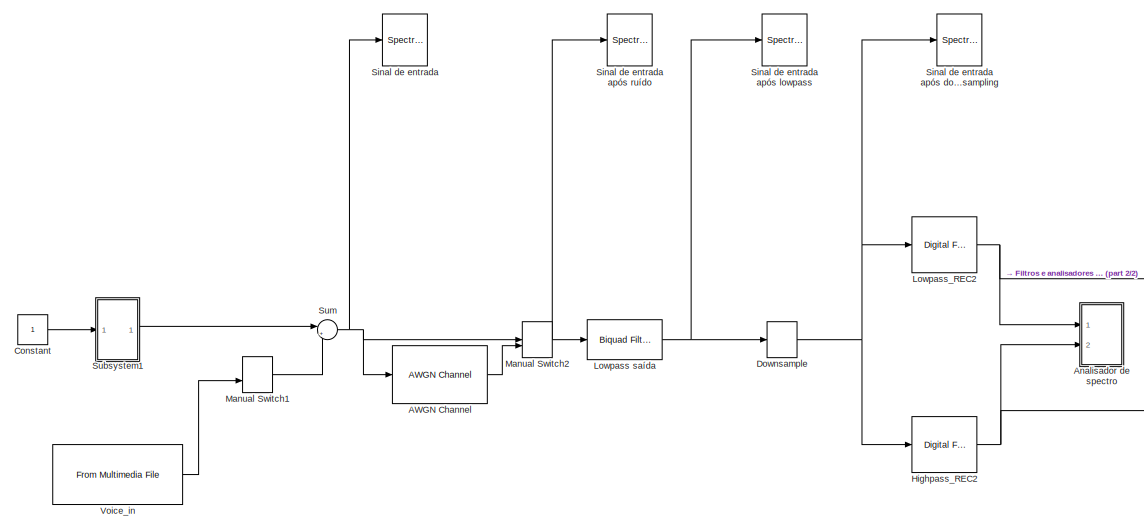
[diagram: root canvas - part 1/2, left side, full height]
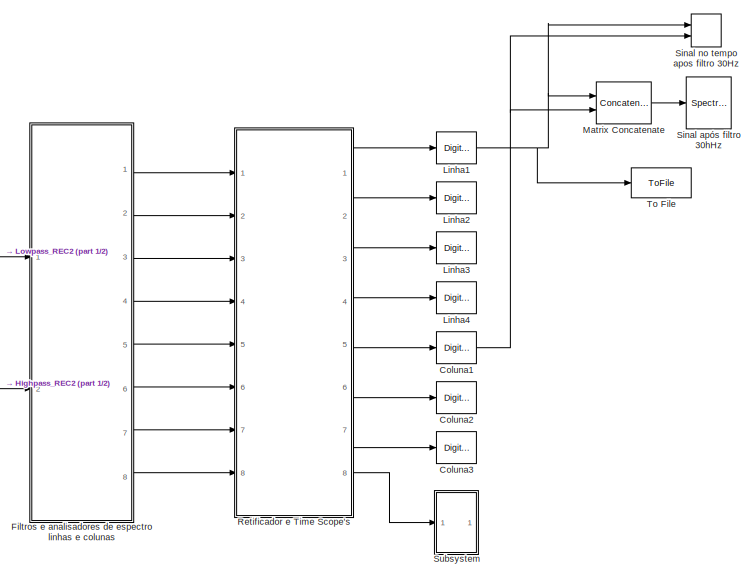
[diagram: root canvas - part 2/2, right side, full height]
MODEL slx_a0249efa5e4d
KIND model
CONFIG AbsTol = auto
CONFIG FixedStep = auto
CONFIG MaxStep = auto
CONFIG MinStep = auto
CONFIG RelTol = 1e-3
CONFIG SampleTimeConstraint = Unconstrained
CONFIG Solver = ode45
CONFIG SolverMode = Auto
CONFIG SolverName = ode45
CONFIG StartTime = 0.0
CONFIG StopTime = 10
BLOCK [Reference] AWGN Channel  REF=commchan3/AWGN
Channel
  EbNodB = 30
  EsNodB = 10
  InputProcessing = Columns as channels (frame based)
  Ports = [1, 1]
  Ps = 1
  SNRdB = 5
  SourceBlock = commchan3/AWGN\nChannel
  SourceType = AWGN Channel
  Tsym = 1
  UserDataPersistent = on
  bitsPerSym = 1
  noiseMode = Signal to noise ratio  (SNR)
  seed = 67
  variance = 1
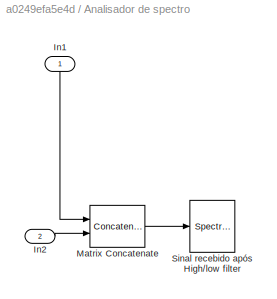
BLOCK [SubSystem] Analisador de spectro
  Ports = [2]
  RequestExecContextInheritance = off
BLOCK [Inport] Analisador de spectro/In1
  IconDisplay = Port number
BLOCK [Inport] Analisador de spectro/In2
  IconDisplay = Port number
  Port = 2
BLOCK [Concatenate] Analisador de spectro/Matrix Concatenate
  ConcatenateDimension = 2
  Mode = Multidimensional array
  Ports = [2, 1]
BLOCK [SpectrumAnalyzer] Analisador de spectro/Sinal recebido após High//low filter
  Ports = [1]
  ScopeSpecificationString = spbscopes.SpectrumAnalyzerBlockCfg('CurrentConfiguration', extmgr.ConfigurationSet(extmgr.Configuration('Core','General UI',true),extmgr.Configuration('Core','Source UI',true),extmgr.Configuration('Sources','WiredSimulink',true),extmgr.Configuration('Visuals','Spectrum',true,'AxesProperties',struct('Color',[0 0 0],'XColor',[0.686274509803922 0.686274509803922 0.686274509803922],'YColor',[0.6862745...<+6570ch>
BLOCK [Reference] Coluna1  REF=dsparch4/Digital
Filter Design
  Ports = [1, 1]
  SourceBlock = dsparch4/Digital\nFilter Design
  SourceType = Digital Filter Design
  UserDataPersistent = on
  mwdsp_browser_bugfix_var = off
BLOCK [Reference] Coluna2  REF=dsparch4/Digital
Filter Design
  Commented = through
  Ports = [1, 1]
  SourceBlock = dsparch4/Digital\nFilter Design
  SourceType = Digital Filter Design
  UserDataPersistent = on
  mwdsp_browser_bugfix_var = off
BLOCK [Reference] Coluna3  REF=dsparch4/Digital
Filter Design
  Commented = through
  Ports = [1, 1]
  SourceBlock = dsparch4/Digital\nFilter Design
  SourceType = Digital Filter Design
  UserDataPersistent = on
  mwdsp_browser_bugfix_var = off
BLOCK [Constant] Constant
BLOCK [DownSample] Downsample
  InputProcessing = Elements as channels (sample based)
  N = 11
  RateOptions = Allow multirate processing
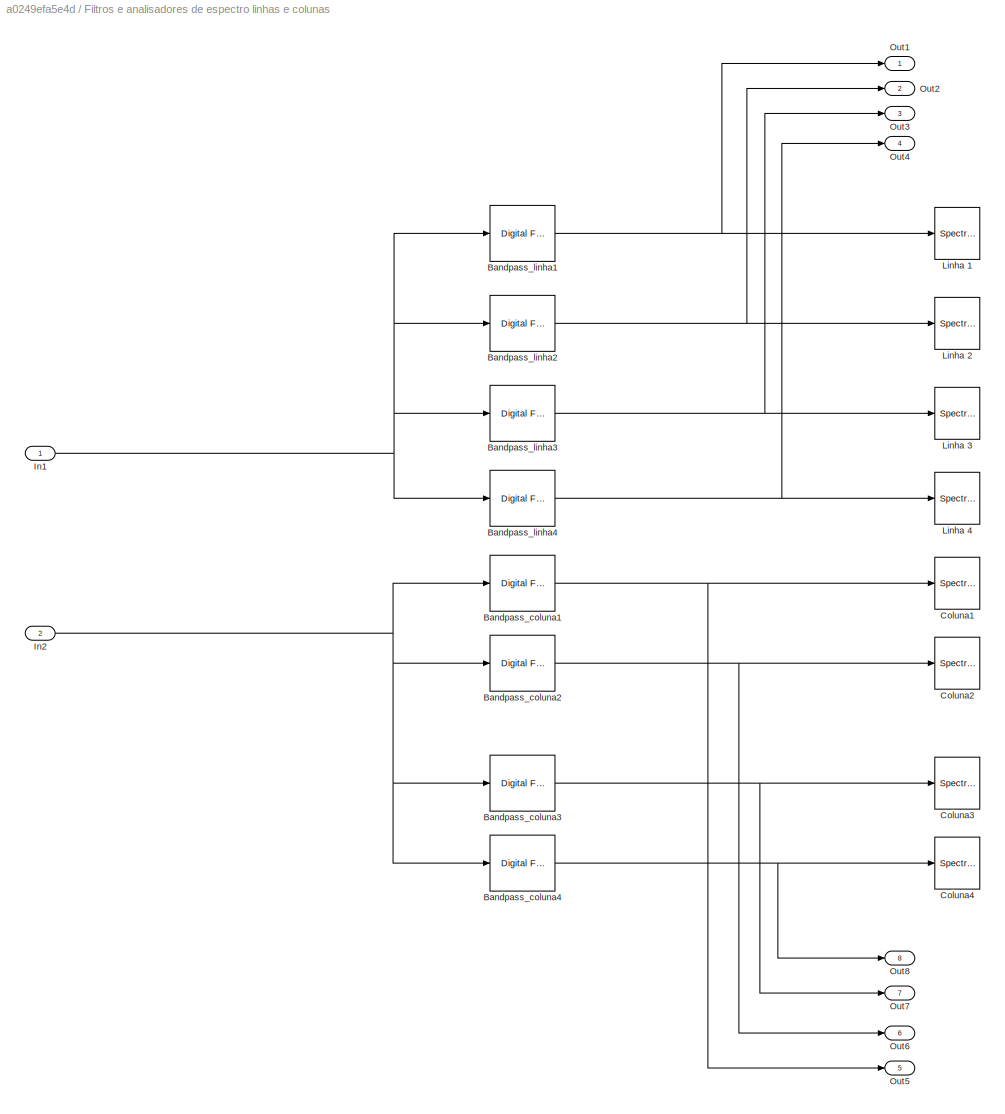
BLOCK [SubSystem] Filtros e analisadores de espectro linhas e colunas
  Ports = [2, 8]
  RequestExecContextInheritance = off
BLOCK [Reference] Filtros e analisadores de espectro linhas e colunas/Bandpass_coluna1  REF=dsparch4/Digital
Filter Design
  Ports = [1, 1]
  SourceBlock = dsparch4/Digital\nFilter Design
  SourceType = Digital Filter Design
  UserDataPersistent = on
  mwdsp_browser_bugfix_var = off
BLOCK [Reference] Filtros e analisadores de espectro linhas e colunas/Bandpass_coluna2  REF=dsparch4/Digital
Filter Design
  Ports = [1, 1]
  SourceBlock = dsparch4/Digital\nFilter Design
  SourceType = Digital Filter Design
  UserDataPersistent = on
  mwdsp_browser_bugfix_var = off
BLOCK [Reference] Filtros e analisadores de espectro linhas e colunas/Bandpass_coluna3  REF=dsparch4/Digital
Filter Design
  Ports = [1, 1]
  SourceBlock = dsparch4/Digital\nFilter Design
  SourceType = Digital Filter Design
  UserDataPersistent = on
  mwdsp_browser_bugfix_var = off
BLOCK [Reference] Filtros e analisadores de espectro linhas e colunas/Bandpass_coluna4  REF=dsparch4/Digital
Filter Design
  Ports = [1, 1]
  SourceBlock = dsparch4/Digital\nFilter Design
  SourceType = Digital Filter Design
  UserDataPersistent = on
  mwdsp_browser_bugfix_var = off
BLOCK [Reference] Filtros e analisadores de espectro linhas e colunas/Bandpass_linha1  REF=dsparch4/Digital
Filter Design
  Ports = [1, 1]
  SourceBlock = dsparch4/Digital\nFilter Design
  SourceType = Digital Filter Design
  UserDataPersistent = on
  mwdsp_browser_bugfix_var = off
BLOCK [Reference] Filtros e analisadores de espectro linhas e colunas/Bandpass_linha2  REF=dsparch4/Digital
Filter Design
  Ports = [1, 1]
  SourceBlock = dsparch4/Digital\nFilter Design
  SourceType = Digital Filter Design
  UserDataPersistent = on
  mwdsp_browser_bugfix_var = off
BLOCK [Reference] Filtros e analisadores de espectro linhas e colunas/Bandpass_linha3  REF=dsparch4/Digital
Filter Design
  Ports = [1, 1]
  SourceBlock = dsparch4/Digital\nFilter Design
  SourceType = Digital Filter Design
  UserDataPersistent = on
  mwdsp_browser_bugfix_var = off
BLOCK [Reference] Filtros e analisadores de espectro linhas e colunas/Bandpass_linha4  REF=dsparch4/Digital
Filter Design
  Ports = [1, 1]
  SourceBlock = dsparch4/Digital\nFilter Design
  SourceType = Digital Filter Design
  UserDataPersistent = on
  mwdsp_browser_bugfix_var = off
BLOCK [SpectrumAnalyzer] Filtros e analisadores de espectro linhas e colunas/Coluna1 
  Ports = [1]
  ScopeSpecificationString = spbscopes.SpectrumAnalyzerBlockCfg('CurrentConfiguration', extmgr.ConfigurationSet(extmgr.Configuration('Core','General UI',true),extmgr.Configuration('Core','Source UI',true),extmgr.Configuration('Sources','WiredSimulink',true),extmgr.Configuration('Visuals','Spectrum',true,'AxesProperties',struct('Color',[0 0 0],'XColor',[0.686274509803922 0.686274509803922 0.686274509803922],'YColor',[0.6862745...<+6195ch>
BLOCK [SpectrumAnalyzer] Filtros e analisadores de espectro linhas e colunas/Coluna2 
  Ports = [1]
  ScopeSpecificationString = spbscopes.SpectrumAnalyzerBlockCfg('CurrentConfiguration', extmgr.ConfigurationSet(extmgr.Configuration('Core','General UI',true),extmgr.Configuration('Core','Source UI',true),extmgr.Configuration('Sources','WiredSimulink',true),extmgr.Configuration('Visuals','Spectrum',true,'AxesProperties',struct('Color',[0 0 0],'XColor',[0.686274509803922 0.686274509803922 0.686274509803922],'YColor',[0.6862745...<+6247ch>
BLOCK [SpectrumAnalyzer] Filtros e analisadores de espectro linhas e colunas/Coluna3
  Ports = [1]
  ScopeSpecificationString = spbscopes.SpectrumAnalyzerBlockCfg('CurrentConfiguration', extmgr.ConfigurationSet(extmgr.Configuration('Core','General UI',true),extmgr.Configuration('Core','Source UI',true),extmgr.Configuration('Sources','WiredSimulink',true),extmgr.Configuration('Visuals','Spectrum',true,'AxesProperties',struct('Color',[0 0 0],'XColor',[0.686274509803922 0.686274509803922 0.686274509803922],'YColor',[0.6862745...<+6194ch>
BLOCK [SpectrumAnalyzer] Filtros e analisadores de espectro linhas e colunas/Coluna4
  Ports = [1]
  ScopeSpecificationString = spbscopes.SpectrumAnalyzerBlockCfg('CurrentConfiguration', extmgr.ConfigurationSet(extmgr.Configuration('Core','General UI',true),extmgr.Configuration('Core','Source UI',true),extmgr.Configuration('Sources','WiredSimulink',true),extmgr.Configuration('Visuals','Spectrum',true,'AxesProperties',struct('Color',[0 0 0],'XColor',[0.686274509803922 0.686274509803922 0.686274509803922],'YColor',[0.6862745...<+6194ch>
BLOCK [Inport] Filtros e analisadores de espectro linhas e colunas/In1
  IconDisplay = Port number
BLOCK [Inport] Filtros e analisadores de espectro linhas e colunas/In2
  IconDisplay = Port number
  Port = 2
BLOCK [SpectrumAnalyzer] Filtros e analisadores de espectro linhas e colunas/Linha 1
  Ports = [1]
  ScopeSpecificationString = spbscopes.SpectrumAnalyzerBlockCfg('CurrentConfiguration', extmgr.ConfigurationSet(extmgr.Configuration('Core','General UI',true),extmgr.Configuration('Core','Source UI',true),extmgr.Configuration('Sources','WiredSimulink',true),extmgr.Configuration('Visuals','Spectrum',true,'AxesProperties',struct('Color',[0 0 0],'XColor',[0.686274509803922 0.686274509803922 0.686274509803922],'YColor',[0.6862745...<+6453ch>
BLOCK [SpectrumAnalyzer] Filtros e analisadores de espectro linhas e colunas/Linha 2
  Ports = [1]
  ScopeSpecificationString = spbscopes.SpectrumAnalyzerBlockCfg('CurrentConfiguration', extmgr.ConfigurationSet(extmgr.Configuration('Core','General UI',true),extmgr.Configuration('Core','Source UI',true),extmgr.Configuration('Sources','WiredSimulink',true),extmgr.Configuration('Visuals','Spectrum',true,'AxesProperties',struct('Color',[0 0 0],'XColor',[0.686274509803922 0.686274509803922 0.686274509803922],'YColor',[0.6862745...<+6453ch>
BLOCK [SpectrumAnalyzer] Filtros e analisadores de espectro linhas e colunas/Linha 3
  Ports = [1]
  ScopeSpecificationString = spbscopes.SpectrumAnalyzerBlockCfg('CurrentConfiguration', extmgr.ConfigurationSet(extmgr.Configuration('Core','General UI',true),extmgr.Configuration('Core','Source UI',true),extmgr.Configuration('Sources','WiredSimulink',true),extmgr.Configuration('Visuals','Spectrum',true,'AxesProperties',struct('Color',[0 0 0],'XColor',[0.686274509803922 0.686274509803922 0.686274509803922],'YColor',[0.6862745...<+6249ch>
BLOCK [SpectrumAnalyzer] Filtros e analisadores de espectro linhas e colunas/Linha 4
  Ports = [1]
  ScopeSpecificationString = spbscopes.SpectrumAnalyzerBlockCfg('CurrentConfiguration', extmgr.ConfigurationSet(extmgr.Configuration('Core','General UI',true),extmgr.Configuration('Core','Source UI',true),extmgr.Configuration('Sources','WiredSimulink',true),extmgr.Configuration('Visuals','Spectrum',true,'AxesProperties',struct('Color',[0 0 0],'XColor',[0.686274509803922 0.686274509803922 0.686274509803922],'YColor',[0.6862745...<+6553ch>
BLOCK [Outport] Filtros e analisadores de espectro linhas e colunas/Out1
  IconDisplay = Port number
BLOCK [Outport] Filtros e analisadores de espectro linhas e colunas/Out2
  IconDisplay = Port number
  Port = 2
BLOCK [Outport] Filtros e analisadores de espectro linhas e colunas/Out3
  IconDisplay = Port number
  Port = 3
BLOCK [Outport] Filtros e analisadores de espectro linhas e colunas/Out4
  IconDisplay = Port number
  Port = 4
BLOCK [Outport] Filtros e analisadores de espectro linhas e colunas/Out5
  IconDisplay = Port number
  Port = 5
BLOCK [Outport] Filtros e analisadores de espectro linhas e colunas/Out6
  IconDisplay = Port number
  Port = 6
BLOCK [Outport] Filtros e analisadores de espectro linhas e colunas/Out7
  IconDisplay = Port number
  Port = 7
BLOCK [Outport] Filtros e analisadores de espectro linhas e colunas/Out8
  IconDisplay = Port number
  Port = 8
BLOCK [Reference] Highpass_REC2   REF=dsparch4/Digital
Filter Design
  Ports = [1, 1]
  SourceBlock = dsparch4/Digital\nFilter Design
  SourceType = Digital Filter Design
  UserDataPersistent = on
  mwdsp_browser_bugfix_var = off
BLOCK [Reference] Linha1  REF=dsparch4/Digital
Filter Design
  Ports = [1, 1]
  SourceBlock = dsparch4/Digital\nFilter Design
  SourceType = Digital Filter Design
  UserDataPersistent = on
  mwdsp_browser_bugfix_var = off
BLOCK [Reference] Linha2  REF=dsparch4/Digital
Filter Design
  Commented = through
  Ports = [1, 1]
  SourceBlock = dsparch4/Digital\nFilter Design
  SourceType = Digital Filter Design
  UserDataPersistent = on
  mwdsp_browser_bugfix_var = off
BLOCK [Reference] Linha3  REF=dsparch4/Digital
Filter Design
  Commented = through
  Ports = [1, 1]
  SourceBlock = dsparch4/Digital\nFilter Design
  SourceType = Digital Filter Design
  UserDataPersistent = on
  mwdsp_browser_bugfix_var = off
BLOCK [Reference] Linha4  REF=dsparch4/Digital
Filter Design
  Commented = through
  Ports = [1, 1]
  SourceBlock = dsparch4/Digital\nFilter Design
  SourceType = Digital Filter Design
  UserDataPersistent = on
  mwdsp_browser_bugfix_var = off
BLOCK [Reference] Lowpass saída  REF=dsparch4/Biquad Filter
  BiQuadCoeffs = [1 2 1 1 -1.79888261046551445 0.817336179398032825]
  CoeffSource = Specify via dialog
  FilterObject = Hm_biquad
  FilterSource = Specify via dialog
  IC = 0
  ICden = 0
  ICnum = 0
  IIRFiltStruct = Direct form II
  InputProcessing = Columns as channels (frame based)
  LockScale = off
  Ports = [1, 1]
  ScaleValueMode = Specify via input port (g)
  ScaleValues = [0.00461339223312960938;1]
  SourceBlock = dsparch4/Biquad Filter
  SourceType = Biquad Filter
  Tag = BlockMethodSubSystem
  UserDataPersistent = on
  a0Flag = Warning
  accumFracLength = 30
  accumMode = Same as product output
  accumWordLength = 32
  allowOverrides = on
  denAccumFracLength = 30
  denProdOutputFracLength = 30
  firstCoeffFracLength = 15
  firstCoeffMode = Same word length as input
  firstCoeffWordLength = 16
  memoryFracLength = 15
  memoryMode = Same as accumulator
  memoryWordLength = 16
  multiplicandFracLength = 30
  multiplicandMode = Same as output
  multiplicandWordLength = 32
  optimizeScaleValues = on
  outputFracLength = 15
  outputMode = Same as accumulator
  outputWordLength = 16
  overflowMode = off
  prodOutputFracLength = 30
  prodOutputMode = Same as input
  prodOutputWordLength = 32
  roundingMode = Floor
  scaleValueFracLength = 14
  secondCoeffFracLength = 15
  secondCoeffMode = Same as numerator
  secondCoeffWordLength = 16
  secondMemoryFracLength = 15
  stageInputFracLength = 15
  stageInputMode = Same as input
  stageInputWordLength = 16
  stageOutputFracLength = 15
  stageOutputMode = Same as section input
  stageOutputWordLength = 16
BLOCK [Reference] Lowpass_REC2  REF=dsparch4/Digital
Filter Design
  Ports = [1, 1]
  SourceBlock = dsparch4/Digital\nFilter Design
  SourceType = Digital Filter Design
  UserDataPersistent = on
  mwdsp_browser_bugfix_var = off
BLOCK [ManualSwitch] Manual Switch1
BLOCK [ManualSwitch] Manual Switch2
BLOCK [Concatenate] Matrix Concatenate
  Commented = on
  ConcatenateDimension = 2
  Mode = Multidimensional array
  Ports = [2, 1]
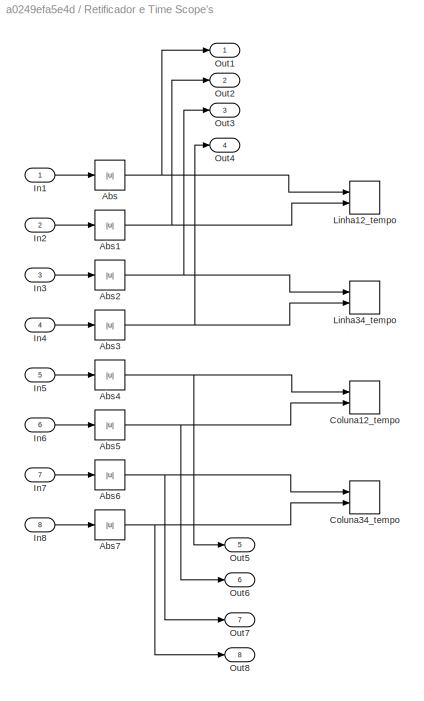
BLOCK [SubSystem] Retificador e Time Scope's
  Ports = [8, 8]
  RequestExecContextInheritance = off
BLOCK [Abs] Retificador e Time Scope's/Abs
  SaturateOnIntegerOverflow = off
BLOCK [Abs] Retificador e Time Scope's/Abs1
  SaturateOnIntegerOverflow = off
BLOCK [Abs] Retificador e Time Scope's/Abs2
  SaturateOnIntegerOverflow = off
BLOCK [Abs] Retificador e Time Scope's/Abs3
  SaturateOnIntegerOverflow = off
BLOCK [Abs] Retificador e Time Scope's/Abs4
  SaturateOnIntegerOverflow = off
BLOCK [Abs] Retificador e Time Scope's/Abs5
  SaturateOnIntegerOverflow = off
BLOCK [Abs] Retificador e Time Scope's/Abs6
  SaturateOnIntegerOverflow = off
BLOCK [Abs] Retificador e Time Scope's/Abs7
  SaturateOnIntegerOverflow = off
BLOCK [TimeScope] Retificador e Time Scope's/Coluna12_tempo
  Commented = on
  DefaultConfigurationName = spbscopes.TimeScopeBlockCfg
  NumInputPorts = 2
  Ports = [2]
  ScopeSpecificationString = spbscopes.TimeScopeBlockCfg('CurrentConfiguration', extmgr.ConfigurationSet(extmgr.Configuration('Core','General UI',true),extmgr.Configuration('Core','Source UI',true),extmgr.Configuration('Sources','WiredSimulink',true,'DataLoggingVariableName','ScopeData2'),extmgr.Configuration('Visuals','Time Domain',true,'DisplayPropertyDefaults',struct('MinYLimReal','-0.0425952','MaxYLimReal','0.383357','YLa...<+1744ch>
  UserDataPersistent = on
BLOCK [TimeScope] Retificador e Time Scope's/Coluna34_tempo
  Commented = on
  DefaultConfigurationName = spbscopes.TimeScopeBlockCfg
  NumInputPorts = 2
  Ports = [2]
  ScopeSpecificationString = spbscopes.TimeScopeBlockCfg('CurrentConfiguration', extmgr.ConfigurationSet(extmgr.Configuration('Core','General UI',true),extmgr.Configuration('Core','Source UI',true),extmgr.Configuration('Sources','WiredSimulink',true,'DataLoggingVariableName','ScopeData3'),extmgr.Configuration('Visuals','Time Domain',true,'DisplayPropertyDefaults',struct('MinYLimReal','0.254513','MaxYLimReal','0.266345','YLabe...<+1438ch>
  UserDataPersistent = on
BLOCK [Inport] Retificador e Time Scope's/In1
  IconDisplay = Port number
BLOCK [Inport] Retificador e Time Scope's/In2
  IconDisplay = Port number
  Port = 2
BLOCK [Inport] Retificador e Time Scope's/In3
  IconDisplay = Port number
  Port = 3
BLOCK [Inport] Retificador e Time Scope's/In4
  IconDisplay = Port number
  Port = 4
BLOCK [Inport] Retificador e Time Scope's/In5
  IconDisplay = Port number
  Port = 5
BLOCK [Inport] Retificador e Time Scope's/In6
  IconDisplay = Port number
  Port = 6
BLOCK [Inport] Retificador e Time Scope's/In7
  IconDisplay = Port number
  Port = 7
BLOCK [Inport] Retificador e Time Scope's/In8
  IconDisplay = Port number
  Port = 8
BLOCK [TimeScope] Retificador e Time Scope's/Linha12_tempo 
  Commented = on
  DefaultConfigurationName = spbscopes.TimeScopeBlockCfg
  NumInputPorts = 2
  Ports = [2]
  ScopeSpecificationString = spbscopes.TimeScopeBlockCfg('CurrentConfiguration', extmgr.ConfigurationSet(extmgr.Configuration('Core','General UI',true),extmgr.Configuration('Core','Source UI',true),extmgr.Configuration('Sources','WiredSimulink',true),extmgr.Configuration('Visuals','Time Domain',true,'DisplayPropertyDefaults',struct('MinYLimReal','-0.0525284','MaxYLimReal','0.472757','YLabelReal','Amplitude','MinYLimMag','0','...<+1397ch>
  UserDataPersistent = on
BLOCK [TimeScope] Retificador e Time Scope's/Linha34_tempo
  Commented = on
  DefaultConfigurationName = spbscopes.TimeScopeBlockCfg
  NumInputPorts = 2
  Ports = [2]
  ScopeSpecificationString = spbscopes.TimeScopeBlockCfg('CurrentConfiguration', extmgr.ConfigurationSet(extmgr.Configuration('Core','General UI',true),extmgr.Configuration('Core','Source UI',true),extmgr.Configuration('Sources','WiredSimulink',true,'DataLoggingVariableName','ScopeData1'),extmgr.Configuration('Visuals','Time Domain',true,'DisplayPropertyDefaults',struct('MinYLimReal','0.254513','MaxYLimReal','0.266345','YLabe...<+1438ch>
  UserDataPersistent = on
BLOCK [Outport] Retificador e Time Scope's/Out1
  IconDisplay = Port number
BLOCK [Outport] Retificador e Time Scope's/Out2
  IconDisplay = Port number
  Port = 2
BLOCK [Outport] Retificador e Time Scope's/Out3
  IconDisplay = Port number
  Port = 3
BLOCK [Outport] Retificador e Time Scope's/Out4
  IconDisplay = Port number
  Port = 4
BLOCK [Outport] Retificador e Time Scope's/Out5
  IconDisplay = Port number
  Port = 5
BLOCK [Outport] Retificador e Time Scope's/Out6
  IconDisplay = Port number
  Port = 6
BLOCK [Outport] Retificador e Time Scope's/Out7
  IconDisplay = Port number
  Port = 7
BLOCK [Outport] Retificador e Time Scope's/Out8
  IconDisplay = Port number
  Port = 8
BLOCK [SpectrumAnalyzer] Sinal após filtro 30hHz
  Commented = on
  Ports = [1]
  ScopeSpecificationString = spbscopes.SpectrumAnalyzerBlockCfg('CurrentConfiguration', extmgr.ConfigurationSet(extmgr.Configuration('Core','General UI',true),extmgr.Configuration('Core','Source UI',true),extmgr.Configuration('Sources','WiredSimulink',true),extmgr.Configuration('Visuals','Spectrum',true,'AxesProperties',struct('Color',[0 0 0],'XColor',[0.686274509803922 0.686274509803922 0.686274509803922],'YColor',[0.6862745...<+7084ch>
BLOCK [SpectrumAnalyzer] Sinal de entrada 
  Commented = on
  Ports = [1]
  ScopeSpecificationString = spbscopes.SpectrumAnalyzerBlockCfg('CurrentConfiguration', extmgr.ConfigurationSet(extmgr.Configuration('Core','General UI',true),extmgr.Configuration('Core','Source UI',true),extmgr.Configuration('Sources','WiredSimulink',true),extmgr.Configuration('Visuals','Spectrum',true,'AxesProperties',struct('Color',[0 0 0],'XColor',[0.686274509803922 0.686274509803922 0.686274509803922],'YColor',[0.6862745...<+6112ch>
BLOCK [SpectrumAnalyzer] Sinal de entrada após downsampling 
  Commented = on
  Ports = [1]
  ScopeSpecificationString = spbscopes.SpectrumAnalyzerBlockCfg('CurrentConfiguration', extmgr.ConfigurationSet(extmgr.Configuration('Core','General UI',true),extmgr.Configuration('Core','Source UI',true),extmgr.Configuration('Sources','WiredSimulink',true),extmgr.Configuration('Visuals','Spectrum',true,'AxesProperties',struct('Color',[0 0 0],'XColor',[0.686274509803922 0.686274509803922 0.686274509803922],'YColor',[0.6862745...<+6020ch>
BLOCK [SpectrumAnalyzer] Sinal de entrada após lowpass 
  Commented = on
  Ports = [1]
  ScopeSpecificationString = spbscopes.SpectrumAnalyzerBlockCfg('CurrentConfiguration', extmgr.ConfigurationSet(extmgr.Configuration('Core','General UI',true),extmgr.Configuration('Core','Source UI',true),extmgr.Configuration('Sources','WiredSimulink',true),extmgr.Configuration('Visuals','Spectrum',true,'AxesProperties',struct('Color',[0 0 0],'XColor',[0.686274509803922 0.686274509803922 0.686274509803922],'YColor',[0.6862745...<+6259ch>
BLOCK [SpectrumAnalyzer] Sinal de entrada após ruído 
  Commented = on
  Ports = [1]
  ScopeSpecificationString = spbscopes.SpectrumAnalyzerBlockCfg('CurrentConfiguration', extmgr.ConfigurationSet(extmgr.Configuration('Core','General UI',true),extmgr.Configuration('Core','Source UI',true),extmgr.Configuration('Sources','WiredSimulink',true),extmgr.Configuration('Visuals','Spectrum',true,'AxesProperties',struct('Color',[0 0 0],'XColor',[0.686274509803922 0.686274509803922 0.686274509803922],'YColor',[0.6862745...<+6258ch>
BLOCK [TimeScope] Sinal no tempo apos filtro 30Hz
  DefaultConfigurationName = spbscopes.TimeScopeBlockCfg
  NumInputPorts = 2
  Ports = [2]
  ScopeSpecificationString = spbscopes.TimeScopeBlockCfg('CurrentConfiguration', extmgr.ConfigurationSet(extmgr.Configuration('Core','General UI',true),extmgr.Configuration('Core','Source UI',true),extmgr.Configuration('Sources','WiredSimulink',true,'DataLoggingVariableName','ScopeData4'),extmgr.Configuration('Visuals','Time Domain',true,'DisplayPropertyDefaults',struct('MinYLimReal','-0.0553692','MaxYLimReal','0.324968','YLa...<+1467ch>
  UserDataPersistent = on
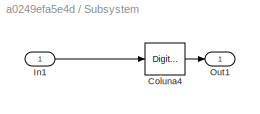
BLOCK [SubSystem] Subsystem
  Commented = through
  Ports = [1, 1]
  RequestExecContextInheritance = off
BLOCK [Reference] Subsystem/Coluna4  REF=dsparch4/Digital
Filter Design
  Ports = [1, 1]
  SourceBlock = dsparch4/Digital\nFilter Design
  SourceType = Digital Filter Design
  UserDataPersistent = on
  mwdsp_browser_bugfix_var = off
BLOCK [Inport] Subsystem/In1
  IconDisplay = Port number
BLOCK [Outport] Subsystem/Out1
  IconDisplay = Port number
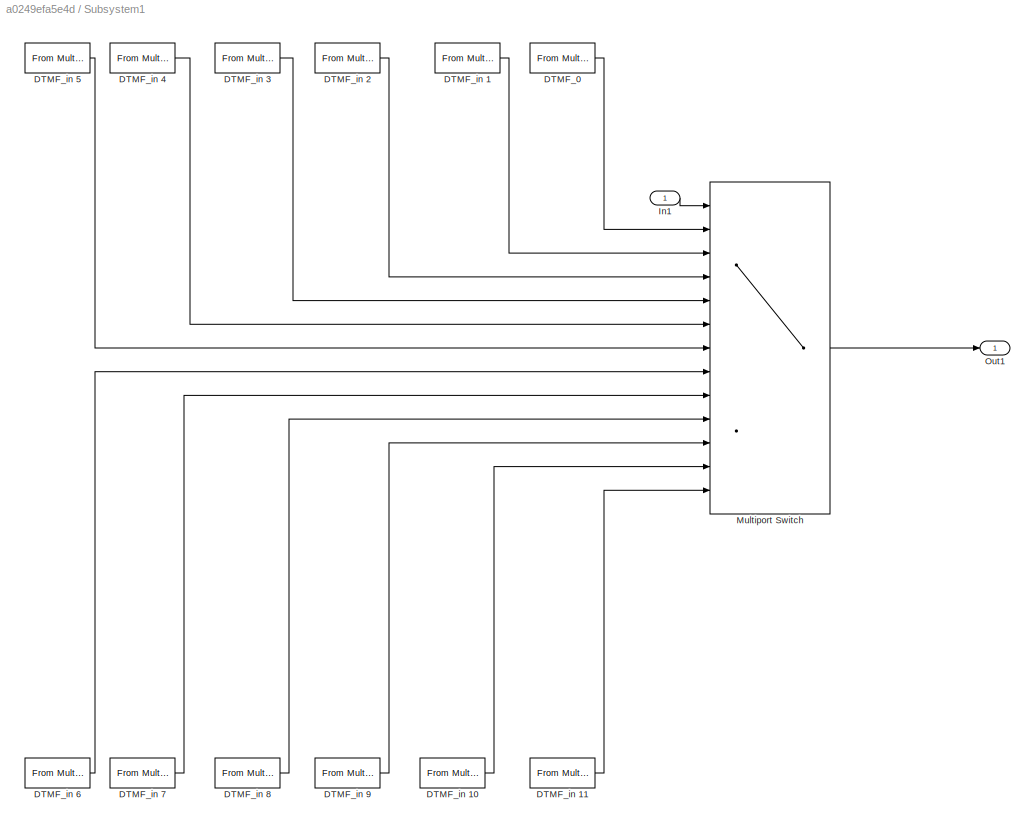
BLOCK [SubSystem] Subsystem1
  Ports = [1, 1]
  RequestExecContextInheritance = off
BLOCK [Reference] Subsystem1/DTMF_0   REF=dspvision/From Multimedia File
  Ports = [0, 1]
  SourceBlock = dspvision/From Multimedia File
  SourceType = From Multimedia File
  audioDataType = double
  audioFrameSize = 1
  colorVideoFormat = Separate color signals
  computeAudioFrameSize = off
  dataOrg = Column-major
  fourcc = RGB
  inheritSampleTime = on
  inputFilename = <userpath>/Projeto_Final_PSD/Audios DTMF com Pausa/0-DTMF.wav
  isIntensityVideo = off
  loop = on
  noAudioOutput = off
  numPlays = inf
  outSamplingMode = Sample based
  outputEOF = off
  outputStreams = Audio only
  userDefinedSampleTime = 1/30
  videoDataType = single
BLOCK [Reference] Subsystem1/DTMF_in 1  REF=dspvision/From Multimedia File
  Ports = [0, 1]
  SourceBlock = dspvision/From Multimedia File
  SourceType = From Multimedia File
  audioDataType = double
  audioFrameSize = 1
  colorVideoFormat = Separate color signals
  computeAudioFrameSize = off
  dataOrg = Column-major
  fourcc = RGB
  inheritSampleTime = on
  inputFilename = <userpath>/Projeto_Final_PSD/Audios DTMF com Pausa/1-DTMF.wav
  isIntensityVideo = off
  loop = on
  noAudioOutput = off
  numPlays = inf
  outSamplingMode = Sample based
  outputEOF = off
  outputStreams = Audio only
  userDefinedSampleTime = 1/30
  videoDataType = single
BLOCK [Reference] Subsystem1/DTMF_in 10  REF=dspvision/From Multimedia File
  Ports = [0, 1]
  SourceBlock = dspvision/From Multimedia File
  SourceType = From Multimedia File
  audioDataType = double
  audioFrameSize = 1
  colorVideoFormat = Separate color signals
  computeAudioFrameSize = off
  dataOrg = Column-major
  fourcc = RGB
  inheritSampleTime = on
  inputFilename = <userpath>/Projeto_Final_PSD/Audios DTMF com Pausa/asterisk-DTMF.wav
  isIntensityVideo = off
  loop = on
  noAudioOutput = off
  numPlays = inf
  outSamplingMode = Sample based
  outputEOF = off
  outputStreams = Audio only
  userDefinedSampleTime = 1/30
  videoDataType = single
BLOCK [Reference] Subsystem1/DTMF_in 11  REF=dspvision/From Multimedia File
  Ports = [0, 1]
  SourceBlock = dspvision/From Multimedia File
  SourceType = From Multimedia File
  audioDataType = double
  audioFrameSize = 1
  colorVideoFormat = Separate color signals
  computeAudioFrameSize = off
  dataOrg = Column-major
  fourcc = RGB
  inheritSampleTime = on
  inputFilename = <userpath>/Projeto_Final_PSD/Audios DTMF com Pausa/#-DTMF.wav
  isIntensityVideo = off
  loop = on
  noAudioOutput = off
  numPlays = inf
  outSamplingMode = Sample based
  outputEOF = off
  outputStreams = Audio only
  userDefinedSampleTime = 1/30
  videoDataType = single
BLOCK [Reference] Subsystem1/DTMF_in 2  REF=dspvision/From Multimedia File
  Ports = [0, 1]
  SourceBlock = dspvision/From Multimedia File
  SourceType = From Multimedia File
  audioDataType = double
  audioFrameSize = 1
  colorVideoFormat = Separate color signals
  computeAudioFrameSize = off
  dataOrg = Column-major
  fourcc = RGB
  inheritSampleTime = on
  inputFilename = <userpath>/Projeto_Final_PSD/Audios DTMF com Pausa/2-DTMF.wav
  isIntensityVideo = off
  loop = on
  noAudioOutput = off
  numPlays = inf
  outSamplingMode = Sample based
  outputEOF = off
  outputStreams = Audio only
  userDefinedSampleTime = 1/30
  videoDataType = single
BLOCK [Reference] Subsystem1/DTMF_in 3  REF=dspvision/From Multimedia File
  Ports = [0, 1]
  SourceBlock = dspvision/From Multimedia File
  SourceType = From Multimedia File
  audioDataType = double
  audioFrameSize = 1
  colorVideoFormat = Separate color signals
  computeAudioFrameSize = off
  dataOrg = Column-major
  fourcc = RGB
  inheritSampleTime = on
  inputFilename = <userpath>/Projeto_Final_PSD/Audios DTMF com Pausa/3-DTMF.wav
  isIntensityVideo = off
  loop = on
  noAudioOutput = off
  numPlays = inf
  outSamplingMode = Sample based
  outputEOF = off
  outputStreams = Audio only
  userDefinedSampleTime = 1/30
  videoDataType = single
BLOCK [Reference] Subsystem1/DTMF_in 4  REF=dspvision/From Multimedia File
  Ports = [0, 1]
  SourceBlock = dspvision/From Multimedia File
  SourceType = From Multimedia File
  audioDataType = double
  audioFrameSize = 1
  colorVideoFormat = Separate color signals
  computeAudioFrameSize = off
  dataOrg = Column-major
  fourcc = RGB
  inheritSampleTime = on
  inputFilename = <userpath>/Projeto_Final_PSD/Audios DTMF com Pausa/4-DTMF.wav
  isIntensityVideo = off
  loop = on
  noAudioOutput = off
  numPlays = inf
  outSamplingMode = Sample based
  outputEOF = off
  outputStreams = Audio only
  userDefinedSampleTime = 1/30
  videoDataType = single
BLOCK [Reference] Subsystem1/DTMF_in 5  REF=dspvision/From Multimedia File
  Ports = [0, 1]
  SourceBlock = dspvision/From Multimedia File
  SourceType = From Multimedia File
  audioDataType = double
  audioFrameSize = 1
  colorVideoFormat = Separate color signals
  computeAudioFrameSize = off
  dataOrg = Column-major
  fourcc = RGB
  inheritSampleTime = on
  inputFilename = <userpath>/Projeto_Final_PSD/Audios DTMF com Pausa/5-DTMF.wav
  isIntensityVideo = off
  loop = on
  noAudioOutput = off
  numPlays = inf
  outSamplingMode = Sample based
  outputEOF = off
  outputStreams = Audio only
  userDefinedSampleTime = 1/30
  videoDataType = single
BLOCK [Reference] Subsystem1/DTMF_in 6  REF=dspvision/From Multimedia File
  Ports = [0, 1]
  SourceBlock = dspvision/From Multimedia File
  SourceType = From Multimedia File
  audioDataType = double
  audioFrameSize = 1
  colorVideoFormat = Separate color signals
  computeAudioFrameSize = off
  dataOrg = Column-major
  fourcc = RGB
  inheritSampleTime = on
  inputFilename = <userpath>/Projeto_Final_PSD/Audios DTMF com Pausa/6-DTMF.wav
  isIntensityVideo = off
  loop = on
  noAudioOutput = off
  numPlays = inf
  outSamplingMode = Sample based
  outputEOF = off
  outputStreams = Audio only
  userDefinedSampleTime = 1/30
  videoDataType = single
BLOCK [Reference] Subsystem1/DTMF_in 7  REF=dspvision/From Multimedia File
  Ports = [0, 1]
  SourceBlock = dspvision/From Multimedia File
  SourceType = From Multimedia File
  audioDataType = double
  audioFrameSize = 1
  colorVideoFormat = Separate color signals
  computeAudioFrameSize = off
  dataOrg = Column-major
  fourcc = RGB
  inheritSampleTime = on
  inputFilename = <userpath>/Projeto_Final_PSD/Audios DTMF com Pausa/7-DTMF.wav
  isIntensityVideo = off
  loop = on
  noAudioOutput = off
  numPlays = inf
  outSamplingMode = Sample based
  outputEOF = off
  outputStreams = Audio only
  userDefinedSampleTime = 1/30
  videoDataType = single
BLOCK [Reference] Subsystem1/DTMF_in 8  REF=dspvision/From Multimedia File
  Ports = [0, 1]
  SourceBlock = dspvision/From Multimedia File
  SourceType = From Multimedia File
  audioDataType = double
  audioFrameSize = 1
  colorVideoFormat = Separate color signals
  computeAudioFrameSize = off
  dataOrg = Column-major
  fourcc = RGB
  inheritSampleTime = on
  inputFilename = <userpath>/Projeto_Final_PSD/Audios DTMF com Pausa/8-DTMF.wav
  isIntensityVideo = off
  loop = on
  noAudioOutput = off
  numPlays = inf
  outSamplingMode = Sample based
  outputEOF = off
  outputStreams = Audio only
  userDefinedSampleTime = 1/30
  videoDataType = single
BLOCK [Reference] Subsystem1/DTMF_in 9  REF=dspvision/From Multimedia File
  Ports = [0, 1]
  SourceBlock = dspvision/From Multimedia File
  SourceType = From Multimedia File
  audioDataType = double
  audioFrameSize = 1
  colorVideoFormat = Separate color signals
  computeAudioFrameSize = off
  dataOrg = Column-major
  fourcc = RGB
  inheritSampleTime = on
  inputFilename = <userpath>/Projeto_Final_PSD/Audios DTMF com Pausa/9-DTMF.wav
  isIntensityVideo = off
  loop = on
  noAudioOutput = off
  numPlays = inf
  outSamplingMode = Sample based
  outputEOF = off
  outputStreams = Audio only
  userDefinedSampleTime = 1/30
  videoDataType = single
BLOCK [Inport] Subsystem1/In1
  IconDisplay = Port number
BLOCK [MultiPortSwitch] Subsystem1/Multiport Switch
  DataPortIndices = {0,1,2,3,4,5,6,7,8,9,10,11}
  DataPortOrder = Specify indices
  InputSameDT = off
  Inputs = 12
  Ports = [13, 1]
  SaturateOnIntegerOverflow = off
BLOCK [Outport] Subsystem1/Out1
  IconDisplay = Port number
BLOCK [Sum] Sum
  IconShape = round
  InputSameDT = off
  Inputs = |++
  OutDataTypeStr = Inherit: Inherit via internal rule
  Ports = [2, 1]
  SaturateOnIntegerOverflow = off
BLOCK [ToFile] To File
  Filename = l1.mat
  MatrixName = l1
  Ports = [1]
BLOCK [Reference] Voice_in   REF=dspvision/From Multimedia File
  Ports = [0, 1]
  SourceBlock = dspvision/From Multimedia File
  SourceType = From Multimedia File
  audioDataType = double
  audioFrameSize = 1
  colorVideoFormat = Separate color signals
  computeAudioFrameSize = off
  dataOrg = Column-major
  fourcc = RGB
  inheritSampleTime = on
  inputFilename = <userpath>/Projeto_Final_PSD/Audios DTMF/9-DTMF.wav
  isIntensityVideo = off
  loop = on
  noAudioOutput = off
  numPlays = inf
  outSamplingMode = Sample based
  outputEOF = off
  outputStreams = Audio only
  userDefinedSampleTime = 1/30
  videoDataType = single
LINE AWGN Channel:1 -> Manual Switch2:2
LINE Analisador de spectro/In1:1 -> Analisador de spectro/Matrix Concatenate:1
LINE Analisador de spectro/In2:1 -> Analisador de spectro/Matrix Concatenate:2
LINE Analisador de spectro/Matrix Concatenate:1 -> Analisador de spectro/Sinal recebido após High//low filter:1
NET Coluna1:1 -> Matrix Concatenate:2, Sinal no tempo apos filtro 30Hz:2
LINE Constant:1 -> Subsystem1:1
NET Downsample:1 -> Highpass_REC2 :1, Lowpass_REC2:1, Sinal de entrada após downsampling :1
NET Filtros e analisadores de espectro linhas e colunas/Bandpass_coluna1:1 -> Filtros e analisadores de espectro linhas e colunas/Coluna1 :1, Filtros e analisadores de espectro linhas e colunas/Out5:1
NET Filtros e analisadores de espectro linhas e colunas/Bandpass_coluna2:1 -> Filtros e analisadores de espectro linhas e colunas/Coluna2 :1, Filtros e analisadores de espectro linhas e colunas/Out6:1
NET Filtros e analisadores de espectro linhas e colunas/Bandpass_coluna3:1 -> Filtros e analisadores de espectro linhas e colunas/Coluna3:1, Filtros e analisadores de espectro linhas e colunas/Out7:1
NET Filtros e analisadores de espectro linhas e colunas/Bandpass_coluna4:1 -> Filtros e analisadores de espectro linhas e colunas/Coluna4:1, Filtros e analisadores de espectro linhas e colunas/Out8:1
NET Filtros e analisadores de espectro linhas e colunas/Bandpass_linha1:1 -> Filtros e analisadores de espectro linhas e colunas/Linha 1:1, Filtros e analisadores de espectro linhas e colunas/Out1:1
NET Filtros e analisadores de espectro linhas e colunas/Bandpass_linha2:1 -> Filtros e analisadores de espectro linhas e colunas/Linha 2:1, Filtros e analisadores de espectro linhas e colunas/Out2:1
NET Filtros e analisadores de espectro linhas e colunas/Bandpass_linha3:1 -> Filtros e analisadores de espectro linhas e colunas/Linha 3:1, Filtros e analisadores de espectro linhas e colunas/Out3:1
NET Filtros e analisadores de espectro linhas e colunas/Bandpass_linha4:1 -> Filtros e analisadores de espectro linhas e colunas/Linha 4:1, Filtros e analisadores de espectro linhas e colunas/Out4:1
NET Filtros e analisadores de espectro linhas e colunas/In1:1 -> Filtros e analisadores de espectro linhas e colunas/Bandpass_linha1:1, Filtros e analisadores de espectro linhas e colunas/Bandpass_linha2:1, Filtros e analisadores de espectro linhas e colunas/Bandpass_linha3:1, Filtros e analisadores de espectro linhas e colunas/Bandpass_linha4:1
NET Filtros e analisadores de espectro linhas e colunas/In2:1 -> Filtros e analisadores de espectro linhas e colunas/Bandpass_coluna1:1, Filtros e analisadores de espectro linhas e colunas/Bandpass_coluna2:1, Filtros e analisadores de espectro linhas e colunas/Bandpass_coluna3:1, Filtros e analisadores de espectro linhas e colunas/Bandpass_coluna4:1
LINE Filtros e analisadores de espectro linhas e colunas:1 -> Retificador e Time Scope's:1
LINE Filtros e analisadores de espectro linhas e colunas:2 -> Retificador e Time Scope's:2
LINE Filtros e analisadores de espectro linhas e colunas:3 -> Retificador e Time Scope's:3
LINE Filtros e analisadores de espectro linhas e colunas:4 -> Retificador e Time Scope's:4
LINE Filtros e analisadores de espectro linhas e colunas:5 -> Retificador e Time Scope's:5
LINE Filtros e analisadores de espectro linhas e colunas:6 -> Retificador e Time Scope's:6
LINE Filtros e analisadores de espectro linhas e colunas:7 -> Retificador e Time Scope's:7
LINE Filtros e analisadores de espectro linhas e colunas:8 -> Retificador e Time Scope's:8
NET Highpass_REC2 :1 -> Analisador de spectro:2, Filtros e analisadores de espectro linhas e colunas:2
NET Linha1:1 -> Matrix Concatenate:1, Sinal no tempo apos filtro 30Hz:1, To File:1
NET Lowpass saída:1 -> Downsample:1, Sinal de entrada após lowpass :1
NET Lowpass_REC2:1 -> Analisador de spectro:1, Filtros e analisadores de espectro linhas e colunas:1
LINE Manual Switch1:1 -> Sum:2
NET Manual Switch2:1 -> Lowpass saída:1, Sinal de entrada após ruído :1
LINE Matrix Concatenate:1 -> Sinal após filtro 30hHz:1
NET Retificador e Time Scope's/Abs1:1 -> Retificador e Time Scope's/Linha12_tempo :2, Retificador e Time Scope's/Out2:1
NET Retificador e Time Scope's/Abs2:1 -> Retificador e Time Scope's/Linha34_tempo:1, Retificador e Time Scope's/Out3:1
NET Retificador e Time Scope's/Abs3:1 -> Retificador e Time Scope's/Linha34_tempo:2, Retificador e Time Scope's/Out4:1
NET Retificador e Time Scope's/Abs4:1 -> Retificador e Time Scope's/Coluna12_tempo:1, Retificador e Time Scope's/Out5:1
NET Retificador e Time Scope's/Abs5:1 -> Retificador e Time Scope's/Coluna12_tempo:2, Retificador e Time Scope's/Out6:1
NET Retificador e Time Scope's/Abs6:1 -> Retificador e Time Scope's/Coluna34_tempo:1, Retificador e Time Scope's/Out7:1
NET Retificador e Time Scope's/Abs7:1 -> Retificador e Time Scope's/Coluna34_tempo:2, Retificador e Time Scope's/Out8:1
NET Retificador e Time Scope's/Abs:1 -> Retificador e Time Scope's/Linha12_tempo :1, Retificador e Time Scope's/Out1:1
LINE Retificador e Time Scope's/In1:1 -> Retificador e Time Scope's/Abs:1
LINE Retificador e Time Scope's/In2:1 -> Retificador e Time Scope's/Abs1:1
LINE Retificador e Time Scope's/In3:1 -> Retificador e Time Scope's/Abs2:1
LINE Retificador e Time Scope's/In4:1 -> Retificador e Time Scope's/Abs3:1
LINE Retificador e Time Scope's/In5:1 -> Retificador e Time Scope's/Abs4:1
LINE Retificador e Time Scope's/In6:1 -> Retificador e Time Scope's/Abs5:1
LINE Retificador e Time Scope's/In7:1 -> Retificador e Time Scope's/Abs6:1
LINE Retificador e Time Scope's/In8:1 -> Retificador e Time Scope's/Abs7:1
LINE Retificador e Time Scope's:1 -> Linha1:1
LINE Retificador e Time Scope's:2 -> Linha2:1
LINE Retificador e Time Scope's:3 -> Linha3:1
LINE Retificador e Time Scope's:4 -> Linha4:1
LINE Retificador e Time Scope's:5 -> Coluna1:1
LINE Retificador e Time Scope's:6 -> Coluna2:1
LINE Retificador e Time Scope's:7 -> Coluna3:1
LINE Retificador e Time Scope's:8 -> Subsystem:1
LINE Subsystem/Coluna4:1 -> Subsystem/Out1:1
LINE Subsystem/In1:1 -> Subsystem/Coluna4:1
LINE Subsystem1/DTMF_0 :1 -> Subsystem1/Multiport Switch:2
LINE Subsystem1/DTMF_in 10:1 -> Subsystem1/Multiport Switch:12
LINE Subsystem1/DTMF_in 11:1 -> Subsystem1/Multiport Switch:13
LINE Subsystem1/DTMF_in 1:1 -> Subsystem1/Multiport Switch:3
LINE Subsystem1/DTMF_in 2:1 -> Subsystem1/Multiport Switch:4
LINE Subsystem1/DTMF_in 3:1 -> Subsystem1/Multiport Switch:5
LINE Subsystem1/DTMF_in 4:1 -> Subsystem1/Multiport Switch:6
LINE Subsystem1/DTMF_in 5:1 -> Subsystem1/Multiport Switch:7
LINE Subsystem1/DTMF_in 6:1 -> Subsystem1/Multiport Switch:8
LINE Subsystem1/DTMF_in 7:1 -> Subsystem1/Multiport Switch:9
LINE Subsystem1/DTMF_in 8:1 -> Subsystem1/Multiport Switch:10
LINE Subsystem1/DTMF_in 9:1 -> Subsystem1/Multiport Switch:11
LINE Subsystem1/In1:1 -> Subsystem1/Multiport Switch:1
LINE Subsystem1/Multiport Switch:1 -> Subsystem1/Out1:1
LINE Subsystem1:1 -> Sum:1
NET Sum:1 -> AWGN Channel:1, Manual Switch2:1, Sinal de entrada :1
LINE Voice_in :1 -> Manual Switch1:2
note: NET lines group one-source signal fan-out (src -> all destinations, sorted); 1:1 wires keep LINE
